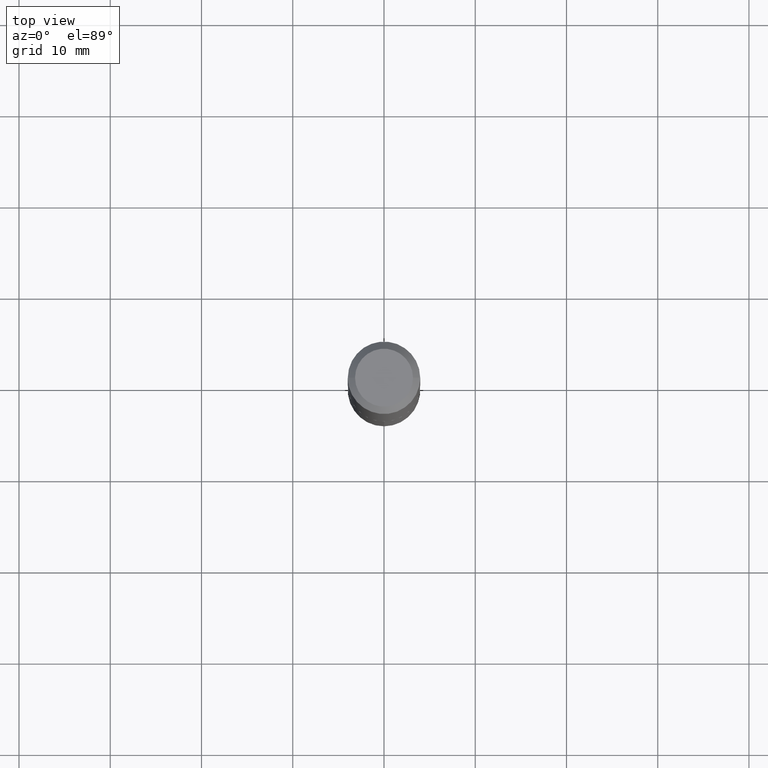
[diagram: clean part render]
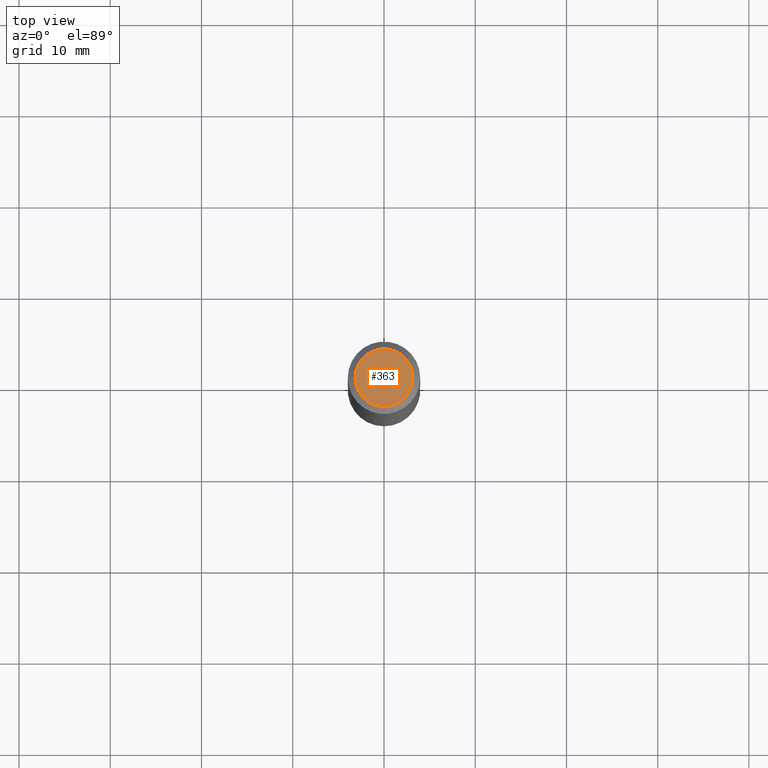
[diagram: same view with one face highlighted and labeled with its STEP entity id]
A machine part, top view. The second image highlights one B-rep face of the part: STEP entity #363.
In plain terms, the highlighted planar face has unit normal (0, -0, -1).
Its self-contained STEP definition (entity closure, byte-faithful):
#23 = DIRECTION ( 'NONE',  ( 2.438088387897960049E-29, -3.491481338843145188E-15, -1.000000000000000000 ) ) ;
#27 = DIRECTION ( 'NONE',  ( 1.000000000000000000, -6.982962677686266711E-15, 4.876242311950517246E-29 ) ) ;
#28 = CARTESIAN_POINT ( 'NONE',  ( -9.358861080966648015E-47, 1.336197326842804765E-32, 3.827021247335480313E-18 ) ) ;
#46 = ORIENTED_EDGE ( 'NONE', *, *, #359, .T. ) ;
#60 = AXIS2_PLACEMENT_3D ( 'NONE', #246, #97, #117 ) ;
#85 = FACE_OUTER_BOUND ( 'NONE', #260, .T. ) ;
#97 = DIRECTION ( 'NONE',  ( -2.445468806185136597E-29, 3.491481338843145583E-15, 1.000000000000000000 ) ) ;
#117 = DIRECTION ( 'NONE',  ( 1.000000000000000000, -6.982962677686266711E-15, 4.876242311950517246E-29 ) ) ;
#137 = CIRCLE ( 'NONE', #60, 0.1250000000000000000 ) ;
#143 = PLANE ( 'NONE',  #281 ) ;
#150 = CARTESIAN_POINT ( 'NONE',  ( -4.679430540483324007E-47, 6.680986634214023823E-33, 1.913510623667740157E-18 ) ) ;
#162 = AXIS2_PLACEMENT_3D ( 'NONE', #28, #296, #27 ) ;
#168 = CARTESIAN_POINT ( 'NONE',  ( 0.1250000000000000000, -1.019311926856046176E-15, 3.827021247342095497E-18 ) ) ;
#184 = CIRCLE ( 'NONE', #162, 0.1250000000000000000 ) ;
#201 = VERTEX_POINT ( 'NONE', #168 ) ;
#246 = CARTESIAN_POINT ( 'NONE',  ( -9.358861080966648015E-47, 1.336197326842804765E-32, 3.827021247335480313E-18 ) ) ;
#260 = EDGE_LOOP ( 'NONE', ( #289, #46 ) ) ;
#271 = DIRECTION ( 'NONE',  ( -1.000000000000000000, 6.982962677686265922E-15, -4.876176775795935793E-29 ) ) ;
#281 = AXIS2_PLACEMENT_3D ( 'NONE', #150, #23, #271 ) ;
#289 = ORIENTED_EDGE ( 'NONE', *, *, #308, .T. ) ;
#296 = DIRECTION ( 'NONE',  ( -2.445468806185136597E-29, 3.491481338843145583E-15, 1.000000000000000000 ) ) ;
#305 = CARTESIAN_POINT ( 'NONE',  ( -0.1250000000000000000, 9.274247306302067059E-16, 3.827021247329185604E-18 ) ) ;
#308 = EDGE_CURVE ( 'NONE', #323, #201, #137, .T. ) ;
#323 = VERTEX_POINT ( 'NONE', #305 ) ;
#359 = EDGE_CURVE ( 'NONE', #201, #323, #184, .T. ) ;
#363 = ADVANCED_FACE ( 'NONE', ( #85 ), #143, .F. ) ;